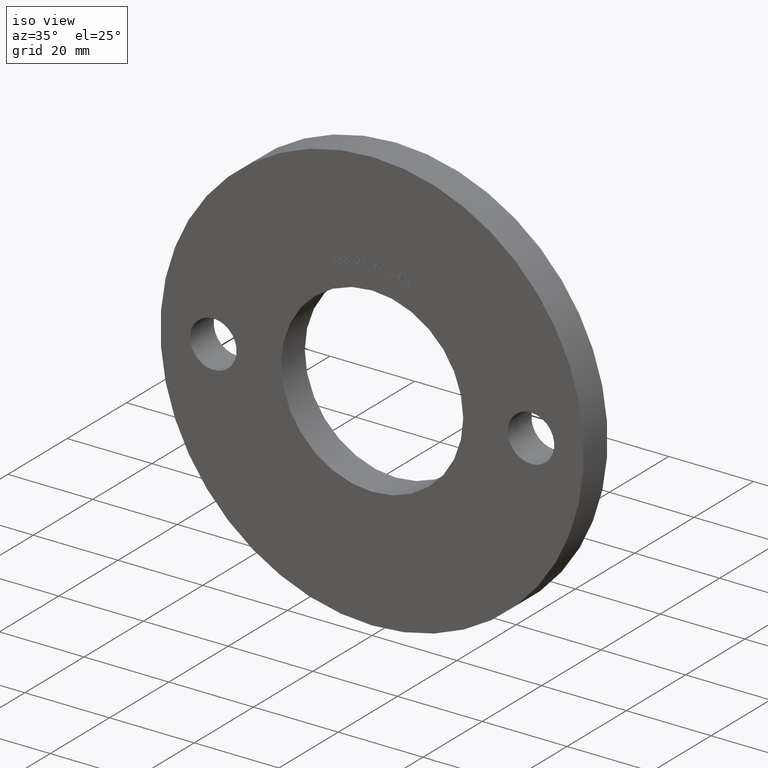
[diagram: clean part render]
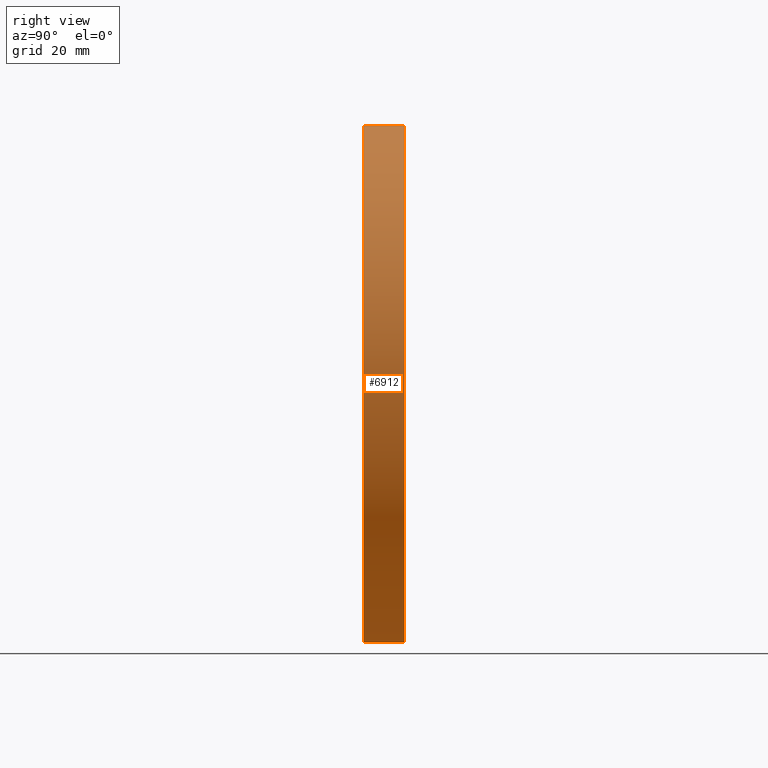
[diagram: tour spotlight — one face highlighted and labeled with its STEP entity id]
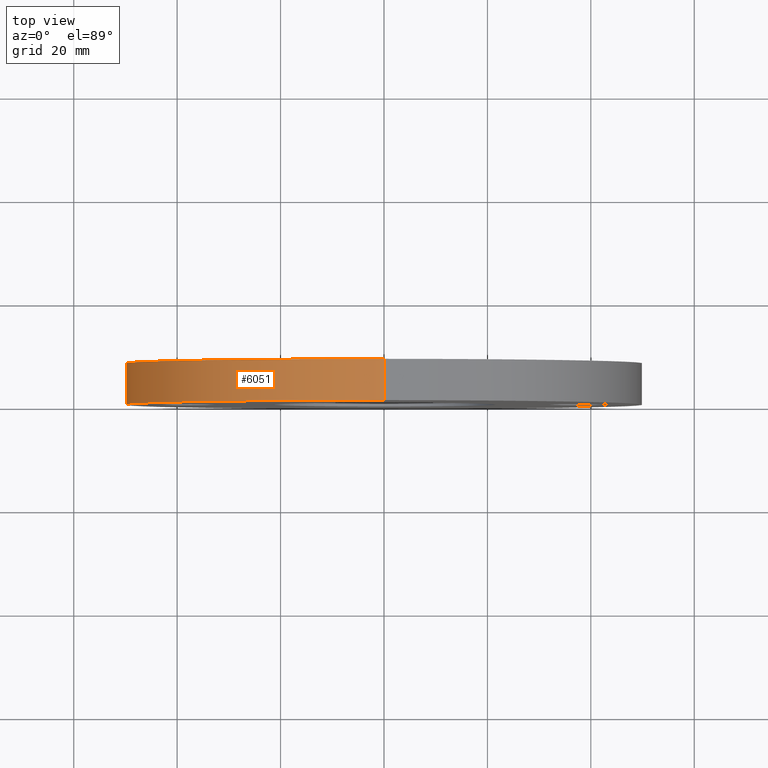
[diagram: tour spotlight — one face highlighted and labeled with its STEP entity id]
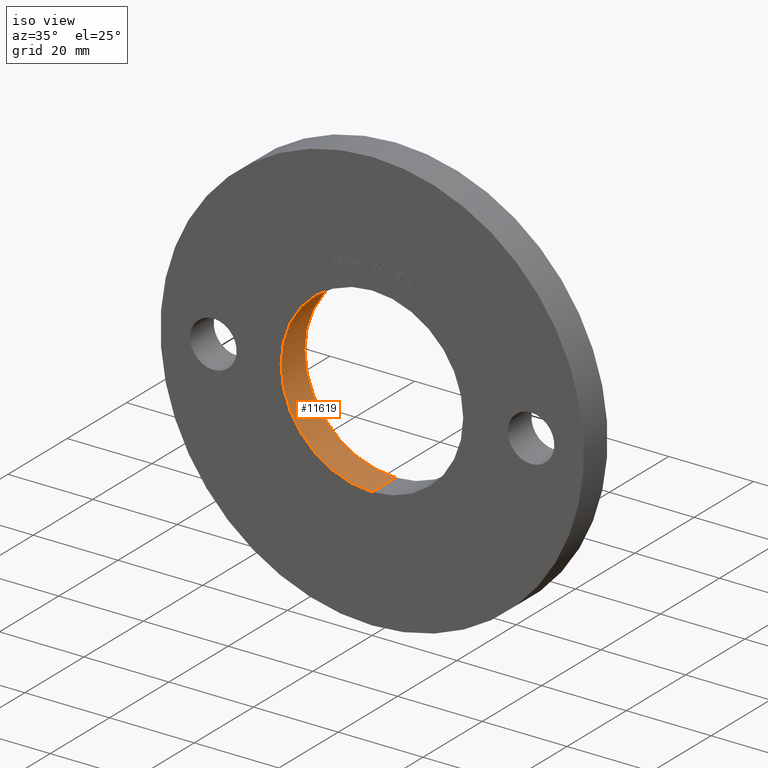
[diagram: tour spotlight — one face highlighted and labeled with its STEP entity id]
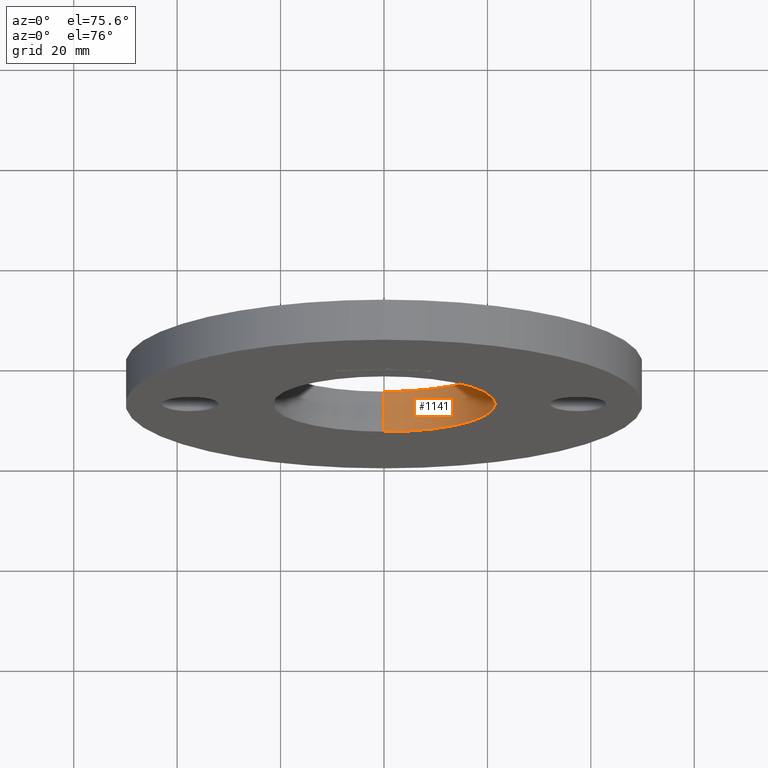
[diagram: tour spotlight — one face highlighted and labeled with its STEP entity id]
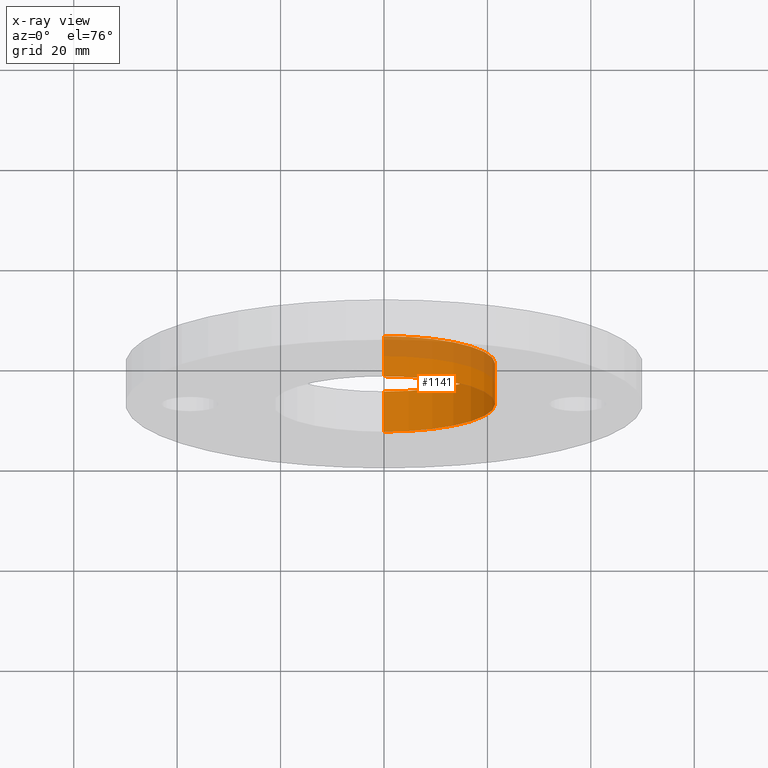
[diagram: x-ray of the same camera — body ghosted, this tour face saturated]
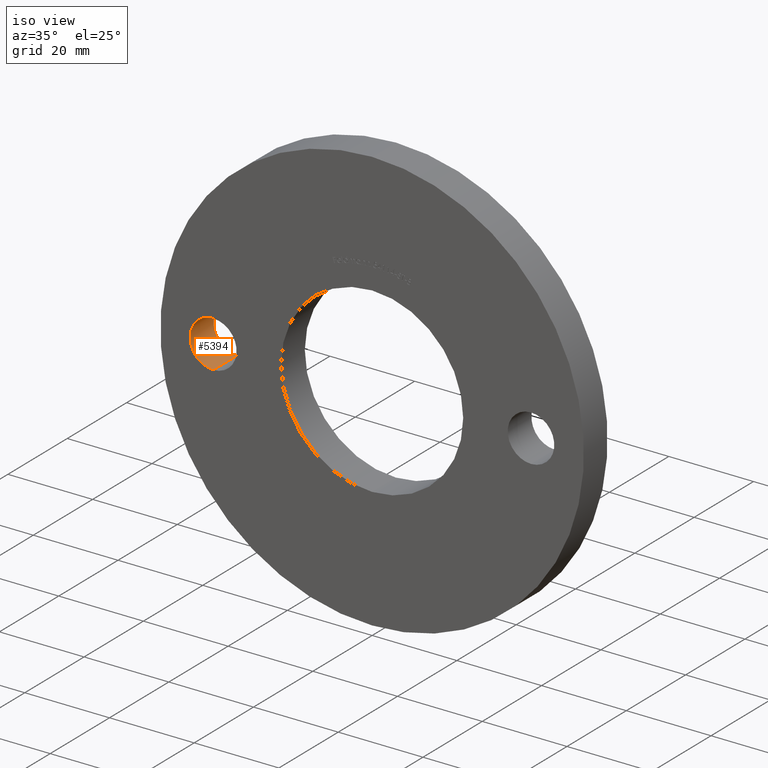
[diagram: tour spotlight — one face highlighted and labeled with its STEP entity id]
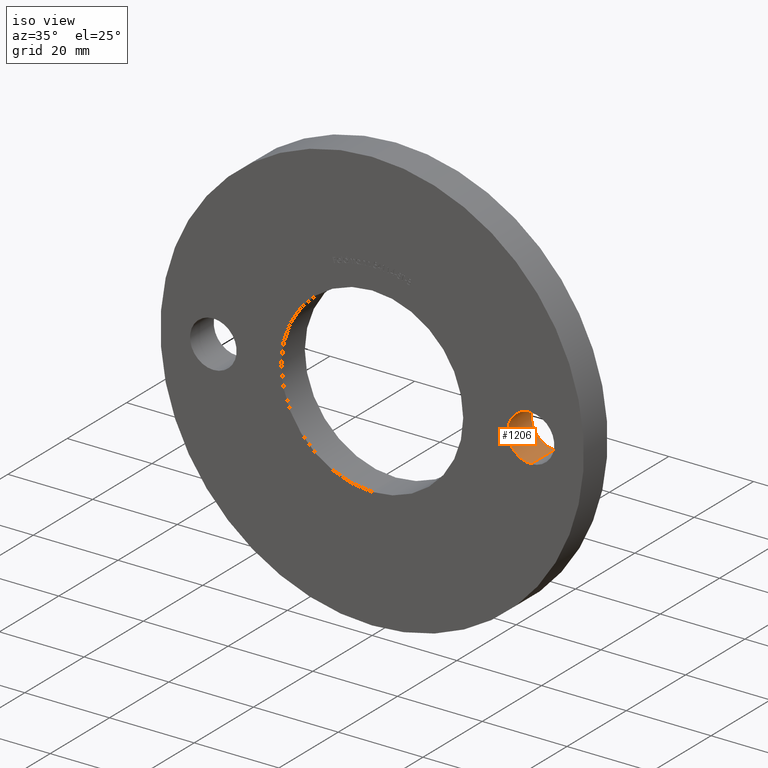
[diagram: tour spotlight — one face highlighted and labeled with its STEP entity id]
A machine part: a face-by-face anatomy tour. The part has 239 B-rep faces; the first image is the clean iso view, then the 6 largest visible faces are spotlighted one at a time (largest first), each with its STEP entity span.

Face 1 — right view, entity #6912. In plain terms, the highlighted cylindrical surface (partial cylindrical patch) has radius 50 mm, axis along (-0, -1, -0).
Definition (entity closure, byte-faithful):
#39 = AXIS2_PLACEMENT_3D ( 'NONE', #10047, #1974, #5617 ) ;
#206 = EDGE_CURVE ( 'NONE', #6939, #8905, #3088, .T. ) ;
#783 = ORIENTED_EDGE ( 'NONE', *, *, #206, .F. ) ;
#1406 = DIRECTION ( 'NONE',  ( 0.0000000000000000000, 0.0000000000000000000, 1.000000000000000000 ) ) ;
#1845 = EDGE_CURVE ( 'NONE', #3380, #6939, #11388, .T. ) ;
#1974 = DIRECTION ( 'NONE',  ( 0.0000000000000000000, 1.000000000000000000, 0.0000000000000000000 ) ) ;
#2114 = EDGE_LOOP ( 'NONE', ( #3367, #10703, #4346, #783 ) ) ;
#2808 = VECTOR ( 'NONE', #5185, 1000.000000000000000 ) ;
#2947 = CARTESIAN_POINT ( 'NONE',  ( 6.123233995736766100E-015, 8.000000000000000000, 50.00000000000000000 ) ) ;
#3088 = LINE ( 'NONE', #6164, #2808 ) ;
#3232 = CARTESIAN_POINT ( 'NONE',  ( 0.0000000000000000000, 0.0000000000000000000, 0.0000000000000000000 ) ) ;
#3296 = CARTESIAN_POINT ( 'NONE',  ( 0.0000000000000000000, 8.000000000000000000, -50.00000000000000000 ) ) ;
#3330 = CARTESIAN_POINT ( 'NONE',  ( 6.123233995736766100E-015, 0.0000000000000000000, 50.00000000000000000 ) ) ;
#3367 = ORIENTED_EDGE ( 'NONE', *, *, #1845, .F. ) ;
#3380 = VERTEX_POINT ( 'NONE', #2947 ) ;
#3402 = EDGE_CURVE ( 'NONE', #3380, #7420, #9089, .T. ) ;
#3827 = CARTESIAN_POINT ( 'NONE',  ( 6.123233995736766100E-015, 8.000000000000000000, 50.00000000000000000 ) ) ;
#4346 = ORIENTED_EDGE ( 'NONE', *, *, #4633, .T. ) ;
#4633 = EDGE_CURVE ( 'NONE', #7420, #8905, #8513, .T. ) ;
#4980 = VECTOR ( 'NONE', #6624, 1000.000000000000000 ) ;
#5185 = DIRECTION ( 'NONE',  ( -0.0000000000000000000, -1.000000000000000000, -0.0000000000000000000 ) ) ;
#5419 = AXIS2_PLACEMENT_3D ( 'NONE', #3232, #6811, #1406 ) ;
#5617 = DIRECTION ( 'NONE',  ( 0.0000000000000000000, 0.0000000000000000000, 1.000000000000000000 ) ) ;
#5867 = FACE_OUTER_BOUND ( 'NONE', #2114, .T. ) ;
#6164 = CARTESIAN_POINT ( 'NONE',  ( 0.0000000000000000000, 8.000000000000000000, -50.00000000000000000 ) ) ;
#6564 = AXIS2_PLACEMENT_3D ( 'NONE', #8869, #9619, #8825 ) ;
#6624 = DIRECTION ( 'NONE',  ( -0.0000000000000000000, -1.000000000000000000, -0.0000000000000000000 ) ) ;
#6811 = DIRECTION ( 'NONE',  ( 0.0000000000000000000, 1.000000000000000000, 0.0000000000000000000 ) ) ;
#6912 = ADVANCED_FACE ( 'NONE', ( #5867 ), #10556, .T. ) ;
#6939 = VERTEX_POINT ( 'NONE', #3296 ) ;
#7155 = CARTESIAN_POINT ( 'NONE',  ( 0.0000000000000000000, 0.0000000000000000000, -50.00000000000000000 ) ) ;
#7420 = VERTEX_POINT ( 'NONE', #3330 ) ;
#8513 = CIRCLE ( 'NONE', #5419, 50.00000000000000000 ) ;
#8825 = DIRECTION ( 'NONE',  ( 0.0000000000000000000, 0.0000000000000000000, -1.000000000000000000 ) ) ;
#8869 = CARTESIAN_POINT ( 'NONE',  ( 0.0000000000000000000, 8.000000000000000000, 0.0000000000000000000 ) ) ;
#8905 = VERTEX_POINT ( 'NONE', #7155 ) ;
#9089 = LINE ( 'NONE', #3827, #4980 ) ;
#9619 = DIRECTION ( 'NONE',  ( -0.0000000000000000000, -1.000000000000000000, -0.0000000000000000000 ) ) ;
#10047 = CARTESIAN_POINT ( 'NONE',  ( 0.0000000000000000000, 8.000000000000000000, 0.0000000000000000000 ) ) ;
#10556 = CYLINDRICAL_SURFACE ( 'NONE', #6564, 50.00000000000000000 ) ;
#10703 = ORIENTED_EDGE ( 'NONE', *, *, #3402, .T. ) ;
#11388 = CIRCLE ( 'NONE', #39, 50.00000000000000000 ) ;

Face 2 — top view, entity #6051. In plain terms, the highlighted cylindrical surface (partial cylindrical patch) has radius 50 mm, axis along (-0, -1, -0).
Definition (entity closure, byte-faithful):
#206 = EDGE_CURVE ( 'NONE', #6939, #8905, #3088, .T. ) ;
#664 = AXIS2_PLACEMENT_3D ( 'NONE', #4784, #9176, #3734 ) ;
#1016 = ORIENTED_EDGE ( 'NONE', *, *, #6034, .F. ) ;
#1341 = CARTESIAN_POINT ( 'NONE',  ( 0.0000000000000000000, 8.000000000000000000, 0.0000000000000000000 ) ) ;
#1641 = FACE_OUTER_BOUND ( 'NONE', #2949, .T. ) ;
#1717 = AXIS2_PLACEMENT_3D ( 'NONE', #7660, #2166, #3960 ) ;
#2166 = DIRECTION ( 'NONE',  ( -0.0000000000000000000, -1.000000000000000000, -0.0000000000000000000 ) ) ;
#2808 = VECTOR ( 'NONE', #5185, 1000.000000000000000 ) ;
#2947 = CARTESIAN_POINT ( 'NONE',  ( 6.123233995736766100E-015, 8.000000000000000000, 50.00000000000000000 ) ) ;
#2949 = EDGE_LOOP ( 'NONE', ( #10877, #1016, #5857, #10707 ) ) ;
#3088 = LINE ( 'NONE', #6164, #2808 ) ;
#3296 = CARTESIAN_POINT ( 'NONE',  ( 0.0000000000000000000, 8.000000000000000000, -50.00000000000000000 ) ) ;
#3330 = CARTESIAN_POINT ( 'NONE',  ( 6.123233995736766100E-015, 0.0000000000000000000, 50.00000000000000000 ) ) ;
#3380 = VERTEX_POINT ( 'NONE', #2947 ) ;
#3402 = EDGE_CURVE ( 'NONE', #3380, #7420, #9089, .T. ) ;
#3734 = DIRECTION ( 'NONE',  ( 0.0000000000000000000, 0.0000000000000000000, 1.000000000000000000 ) ) ;
#3827 = CARTESIAN_POINT ( 'NONE',  ( 6.123233995736766100E-015, 8.000000000000000000, 50.00000000000000000 ) ) ;
#3960 = DIRECTION ( 'NONE',  ( 0.0000000000000000000, 0.0000000000000000000, -1.000000000000000000 ) ) ;
#4044 = DIRECTION ( 'NONE',  ( 0.0000000000000000000, 0.0000000000000000000, 1.000000000000000000 ) ) ;
#4784 = CARTESIAN_POINT ( 'NONE',  ( 0.0000000000000000000, 0.0000000000000000000, 0.0000000000000000000 ) ) ;
#4892 = CYLINDRICAL_SURFACE ( 'NONE', #1717, 50.00000000000000000 ) ;
#4980 = VECTOR ( 'NONE', #6624, 1000.000000000000000 ) ;
#5185 = DIRECTION ( 'NONE',  ( -0.0000000000000000000, -1.000000000000000000, -0.0000000000000000000 ) ) ;
#5770 = DIRECTION ( 'NONE',  ( 0.0000000000000000000, 1.000000000000000000, 0.0000000000000000000 ) ) ;
#5857 = ORIENTED_EDGE ( 'NONE', *, *, #206, .T. ) ;
#5943 = AXIS2_PLACEMENT_3D ( 'NONE', #1341, #5770, #4044 ) ;
#5954 = EDGE_CURVE ( 'NONE', #8905, #7420, #8858, .T. ) ;
#6034 = EDGE_CURVE ( 'NONE', #6939, #3380, #8290, .T. ) ;
#6051 = ADVANCED_FACE ( 'NONE', ( #1641 ), #4892, .T. ) ;
#6164 = CARTESIAN_POINT ( 'NONE',  ( 0.0000000000000000000, 8.000000000000000000, -50.00000000000000000 ) ) ;
#6624 = DIRECTION ( 'NONE',  ( -0.0000000000000000000, -1.000000000000000000, -0.0000000000000000000 ) ) ;
#6939 = VERTEX_POINT ( 'NONE', #3296 ) ;
#7155 = CARTESIAN_POINT ( 'NONE',  ( 0.0000000000000000000, 0.0000000000000000000, -50.00000000000000000 ) ) ;
#7420 = VERTEX_POINT ( 'NONE', #3330 ) ;
#7660 = CARTESIAN_POINT ( 'NONE',  ( 0.0000000000000000000, 8.000000000000000000, 0.0000000000000000000 ) ) ;
#8290 = CIRCLE ( 'NONE', #5943, 50.00000000000000000 ) ;
#8858 = CIRCLE ( 'NONE', #664, 50.00000000000000000 ) ;
#8905 = VERTEX_POINT ( 'NONE', #7155 ) ;
#9089 = LINE ( 'NONE', #3827, #4980 ) ;
#9176 = DIRECTION ( 'NONE',  ( 0.0000000000000000000, 1.000000000000000000, 0.0000000000000000000 ) ) ;
#10707 = ORIENTED_EDGE ( 'NONE', *, *, #5954, .T. ) ;
#10877 = ORIENTED_EDGE ( 'NONE', *, *, #3402, .F. ) ;

Face 3 — iso view, entity #11619. In plain terms, the highlighted cylindrical surface (partial cylindrical patch) has radius 21.5 mm, axis along (-0, 1, -0).
Definition (entity closure, byte-faithful):
#116 = LINE ( 'NONE', #10740, #9300 ) ;
#203 = EDGE_LOOP ( 'NONE', ( #4304, #3169, #8258, #5321 ) ) ;
#449 = CARTESIAN_POINT ( 'NONE',  ( 0.0000000000000000000, 8.000000000000000000, 21.50000000000000000 ) ) ;
#703 = EDGE_CURVE ( 'NONE', #3215, #9386, #116, .T. ) ;
#804 = CARTESIAN_POINT ( 'NONE',  ( 0.0000000000000000000, 0.0000000000000000000, 21.50000000000000000 ) ) ;
#1044 = CYLINDRICAL_SURFACE ( 'NONE', #8919, 21.50000000000000000 ) ;
#2189 = CIRCLE ( 'NONE', #2708, 21.50000000000000000 ) ;
#2630 = CARTESIAN_POINT ( 'NONE',  ( 2.632990618166809200E-015, 0.0000000000000000000, -21.50000000000000000 ) ) ;
#2708 = AXIS2_PLACEMENT_3D ( 'NONE', #5692, #9414, #6721 ) ;
#2838 = CARTESIAN_POINT ( 'NONE',  ( 0.0000000000000000000, 0.0000000000000000000, 0.0000000000000000000 ) ) ;
#3047 = CARTESIAN_POINT ( 'NONE',  ( 2.632990618166809200E-015, 8.000000000000000000, -21.50000000000000000 ) ) ;
#3169 = ORIENTED_EDGE ( 'NONE', *, *, #703, .T. ) ;
#3215 = VERTEX_POINT ( 'NONE', #2630 ) ;
#4008 = AXIS2_PLACEMENT_3D ( 'NONE', #2838, #8257, #7379 ) ;
#4304 = ORIENTED_EDGE ( 'NONE', *, *, #11039, .F. ) ;
#4554 = DIRECTION ( 'NONE',  ( -0.0000000000000000000, 1.000000000000000000, -0.0000000000000000000 ) ) ;
#5228 = CARTESIAN_POINT ( 'NONE',  ( 0.0000000000000000000, 0.0000000000000000000, 0.0000000000000000000 ) ) ;
#5321 = ORIENTED_EDGE ( 'NONE', *, *, #8427, .F. ) ;
#5692 = CARTESIAN_POINT ( 'NONE',  ( 0.0000000000000000000, 8.000000000000000000, 0.0000000000000000000 ) ) ;
#6100 = CARTESIAN_POINT ( 'NONE',  ( 0.0000000000000000000, 0.0000000000000000000, 21.50000000000000000 ) ) ;
#6721 = DIRECTION ( 'NONE',  ( 0.0000000000000000000, 0.0000000000000000000, 1.000000000000000000 ) ) ;
#6998 = VERTEX_POINT ( 'NONE', #804 ) ;
#7166 = LINE ( 'NONE', #6100, #7743 ) ;
#7271 = CIRCLE ( 'NONE', #4008, 21.50000000000000000 ) ;
#7379 = DIRECTION ( 'NONE',  ( 0.0000000000000000000, 0.0000000000000000000, 1.000000000000000000 ) ) ;
#7408 = FACE_OUTER_BOUND ( 'NONE', #203, .T. ) ;
#7743 = VECTOR ( 'NONE', #8880, 1000.000000000000000 ) ;
#8257 = DIRECTION ( 'NONE',  ( 0.0000000000000000000, 1.000000000000000000, 0.0000000000000000000 ) ) ;
#8258 = ORIENTED_EDGE ( 'NONE', *, *, #10610, .T. ) ;
#8427 = EDGE_CURVE ( 'NONE', #6998, #11545, #7166, .T. ) ;
#8880 = DIRECTION ( 'NONE',  ( -0.0000000000000000000, 1.000000000000000000, -0.0000000000000000000 ) ) ;
#8919 = AXIS2_PLACEMENT_3D ( 'NONE', #5228, #11484, #10693 ) ;
#9300 = VECTOR ( 'NONE', #4554, 1000.000000000000000 ) ;
#9386 = VERTEX_POINT ( 'NONE', #3047 ) ;
#9414 = DIRECTION ( 'NONE',  ( 0.0000000000000000000, 1.000000000000000000, 0.0000000000000000000 ) ) ;
#10610 = EDGE_CURVE ( 'NONE', #9386, #11545, #2189, .T. ) ;
#10693 = DIRECTION ( 'NONE',  ( 0.0000000000000000000, 0.0000000000000000000, 1.000000000000000000 ) ) ;
#10740 = CARTESIAN_POINT ( 'NONE',  ( 2.632990618166809200E-015, 0.0000000000000000000, -21.50000000000000000 ) ) ;
#11039 = EDGE_CURVE ( 'NONE', #3215, #6998, #7271, .T. ) ;
#11484 = DIRECTION ( 'NONE',  ( -0.0000000000000000000, 1.000000000000000000, -0.0000000000000000000 ) ) ;
#11545 = VERTEX_POINT ( 'NONE', #449 ) ;
#11619 = ADVANCED_FACE ( 'NONE', ( #7408 ), #1044, .F. ) ;

Face 4 — auxiliary view, entity #1141. An x-ray twin of the same camera follows (body ghosted, this face saturated) — the face is partly hidden behind the body. In plain terms, the highlighted cylindrical surface (partial cylindrical patch) has radius 21.5 mm, axis along (-0, 1, -0).
Definition (entity closure, byte-faithful):
#116 = LINE ( 'NONE', #10740, #9300 ) ;
#449 = CARTESIAN_POINT ( 'NONE',  ( 0.0000000000000000000, 8.000000000000000000, 21.50000000000000000 ) ) ;
#646 = ORIENTED_EDGE ( 'NONE', *, *, #8427, .T. ) ;
#703 = EDGE_CURVE ( 'NONE', #3215, #9386, #116, .T. ) ;
#804 = CARTESIAN_POINT ( 'NONE',  ( 0.0000000000000000000, 0.0000000000000000000, 21.50000000000000000 ) ) ;
#1141 = ADVANCED_FACE ( 'NONE', ( #1904 ), #11253, .F. ) ;
#1535 = EDGE_CURVE ( 'NONE', #11545, #9386, #5723, .T. ) ;
#1679 = DIRECTION ( 'NONE',  ( 0.0000000000000000000, 1.000000000000000000, 0.0000000000000000000 ) ) ;
#1779 = CIRCLE ( 'NONE', #9848, 21.50000000000000000 ) ;
#1904 = FACE_OUTER_BOUND ( 'NONE', #2884, .T. ) ;
#2630 = CARTESIAN_POINT ( 'NONE',  ( 2.632990618166809200E-015, 0.0000000000000000000, -21.50000000000000000 ) ) ;
#2884 = EDGE_LOOP ( 'NONE', ( #11675, #5477, #646, #3436 ) ) ;
#3047 = CARTESIAN_POINT ( 'NONE',  ( 2.632990618166809200E-015, 8.000000000000000000, -21.50000000000000000 ) ) ;
#3215 = VERTEX_POINT ( 'NONE', #2630 ) ;
#3362 = DIRECTION ( 'NONE',  ( 0.0000000000000000000, 0.0000000000000000000, 1.000000000000000000 ) ) ;
#3436 = ORIENTED_EDGE ( 'NONE', *, *, #1535, .T. ) ;
#4554 = DIRECTION ( 'NONE',  ( -0.0000000000000000000, 1.000000000000000000, -0.0000000000000000000 ) ) ;
#4710 = CARTESIAN_POINT ( 'NONE',  ( 0.0000000000000000000, 8.000000000000000000, 0.0000000000000000000 ) ) ;
#5169 = CARTESIAN_POINT ( 'NONE',  ( 0.0000000000000000000, 0.0000000000000000000, 0.0000000000000000000 ) ) ;
#5211 = DIRECTION ( 'NONE',  ( -0.0000000000000000000, 1.000000000000000000, -0.0000000000000000000 ) ) ;
#5429 = DIRECTION ( 'NONE',  ( 0.0000000000000000000, 0.0000000000000000000, 1.000000000000000000 ) ) ;
#5477 = ORIENTED_EDGE ( 'NONE', *, *, #10311, .F. ) ;
#5541 = DIRECTION ( 'NONE',  ( 0.0000000000000000000, 0.0000000000000000000, 1.000000000000000000 ) ) ;
#5723 = CIRCLE ( 'NONE', #6898, 21.50000000000000000 ) ;
#6100 = CARTESIAN_POINT ( 'NONE',  ( 0.0000000000000000000, 0.0000000000000000000, 21.50000000000000000 ) ) ;
#6898 = AXIS2_PLACEMENT_3D ( 'NONE', #4710, #9216, #5541 ) ;
#6998 = VERTEX_POINT ( 'NONE', #804 ) ;
#7125 = AXIS2_PLACEMENT_3D ( 'NONE', #5169, #5211, #3362 ) ;
#7166 = LINE ( 'NONE', #6100, #7743 ) ;
#7743 = VECTOR ( 'NONE', #8880, 1000.000000000000000 ) ;
#8427 = EDGE_CURVE ( 'NONE', #6998, #11545, #7166, .T. ) ;
#8880 = DIRECTION ( 'NONE',  ( -0.0000000000000000000, 1.000000000000000000, -0.0000000000000000000 ) ) ;
#9216 = DIRECTION ( 'NONE',  ( 0.0000000000000000000, 1.000000000000000000, 0.0000000000000000000 ) ) ;
#9300 = VECTOR ( 'NONE', #4554, 1000.000000000000000 ) ;
#9386 = VERTEX_POINT ( 'NONE', #3047 ) ;
#9848 = AXIS2_PLACEMENT_3D ( 'NONE', #11732, #1679, #5429 ) ;
#10311 = EDGE_CURVE ( 'NONE', #6998, #3215, #1779, .T. ) ;
#10740 = CARTESIAN_POINT ( 'NONE',  ( 2.632990618166809200E-015, 0.0000000000000000000, -21.50000000000000000 ) ) ;
#11253 = CYLINDRICAL_SURFACE ( 'NONE', #7125, 21.50000000000000000 ) ;
#11545 = VERTEX_POINT ( 'NONE', #449 ) ;
#11675 = ORIENTED_EDGE ( 'NONE', *, *, #703, .F. ) ;
#11732 = CARTESIAN_POINT ( 'NONE',  ( 0.0000000000000000000, 0.0000000000000000000, 0.0000000000000000000 ) ) ;

Face 5 — iso view, entity #5394. In plain terms, the highlighted cylindrical surface (edge-blend (fillet) strip) has radius 5.5 mm, axis along (-0, 1, -0).
Definition (entity closure, byte-faithful):
#237 = CIRCLE ( 'NONE', #2626, 5.499999999999996400 ) ;
#358 = CIRCLE ( 'NONE', #10213, 5.499999999999996400 ) ;
#765 = LINE ( 'NONE', #4545, #1757 ) ;
#868 = ORIENTED_EDGE ( 'NONE', *, *, #11698, .T. ) ;
#930 = VERTEX_POINT ( 'NONE', #9735 ) ;
#1757 = VECTOR ( 'NONE', #7222, 1000.000000000000000 ) ;
#1821 = CARTESIAN_POINT ( 'NONE',  ( -37.50000000000000000, 0.0000000000000000000, -5.499999999999996400 ) ) ;
#1936 = VECTOR ( 'NONE', #5444, 1000.000000000000000 ) ;
#2626 = AXIS2_PLACEMENT_3D ( 'NONE', #8997, #8203, #10826 ) ;
#3627 = CARTESIAN_POINT ( 'NONE',  ( -37.50000000000000000, 8.000000000000000000, 5.499999999999996400 ) ) ;
#3855 = CARTESIAN_POINT ( 'NONE',  ( -37.50000000000000000, 8.000000000000000000, -5.499999999999996400 ) ) ;
#4280 = CYLINDRICAL_SURFACE ( 'NONE', #7464, 5.499999999999996400 ) ;
#4545 = CARTESIAN_POINT ( 'NONE',  ( -37.50000000000000000, 0.0000000000000000000, -5.499999999999996400 ) ) ;
#4854 = VERTEX_POINT ( 'NONE', #3627 ) ;
#5073 = DIRECTION ( 'NONE',  ( 0.0000000000000000000, 0.0000000000000000000, 1.000000000000000000 ) ) ;
#5356 = DIRECTION ( 'NONE',  ( 0.0000000000000000000, 0.0000000000000000000, 1.000000000000000000 ) ) ;
#5394 = ADVANCED_FACE ( 'NONE', ( #10644 ), #4280, .F. ) ;
#5444 = DIRECTION ( 'NONE',  ( -0.0000000000000000000, 1.000000000000000000, -0.0000000000000000000 ) ) ;
#5534 = VERTEX_POINT ( 'NONE', #1821 ) ;
#5822 = ORIENTED_EDGE ( 'NONE', *, *, #10434, .T. ) ;
#6181 = CARTESIAN_POINT ( 'NONE',  ( -37.50000000000000000, 8.000000000000000000, 0.0000000000000000000 ) ) ;
#6311 = CARTESIAN_POINT ( 'NONE',  ( -37.50000000000000000, 0.0000000000000000000, 5.499999999999996400 ) ) ;
#6595 = LINE ( 'NONE', #6311, #1936 ) ;
#6670 = VERTEX_POINT ( 'NONE', #3855 ) ;
#6980 = ORIENTED_EDGE ( 'NONE', *, *, #9049, .F. ) ;
#7222 = DIRECTION ( 'NONE',  ( -0.0000000000000000000, 1.000000000000000000, -0.0000000000000000000 ) ) ;
#7464 = AXIS2_PLACEMENT_3D ( 'NONE', #10310, #9550, #5073 ) ;
#8002 = DIRECTION ( 'NONE',  ( 0.0000000000000000000, 1.000000000000000000, 0.0000000000000000000 ) ) ;
#8203 = DIRECTION ( 'NONE',  ( 0.0000000000000000000, 1.000000000000000000, 0.0000000000000000000 ) ) ;
#8531 = EDGE_LOOP ( 'NONE', ( #11506, #868, #5822, #6980 ) ) ;
#8997 = CARTESIAN_POINT ( 'NONE',  ( -37.50000000000000000, 0.0000000000000000000, 0.0000000000000000000 ) ) ;
#9022 = EDGE_CURVE ( 'NONE', #5534, #930, #237, .T. ) ;
#9049 = EDGE_CURVE ( 'NONE', #930, #4854, #6595, .T. ) ;
#9550 = DIRECTION ( 'NONE',  ( -0.0000000000000000000, 1.000000000000000000, -0.0000000000000000000 ) ) ;
#9735 = CARTESIAN_POINT ( 'NONE',  ( -37.50000000000000000, 0.0000000000000000000, 5.499999999999996400 ) ) ;
#10213 = AXIS2_PLACEMENT_3D ( 'NONE', #6181, #8002, #5356 ) ;
#10310 = CARTESIAN_POINT ( 'NONE',  ( -37.50000000000000000, 0.0000000000000000000, 0.0000000000000000000 ) ) ;
#10434 = EDGE_CURVE ( 'NONE', #6670, #4854, #358, .T. ) ;
#10644 = FACE_OUTER_BOUND ( 'NONE', #8531, .T. ) ;
#10826 = DIRECTION ( 'NONE',  ( 0.0000000000000000000, 0.0000000000000000000, 1.000000000000000000 ) ) ;
#11506 = ORIENTED_EDGE ( 'NONE', *, *, #9022, .F. ) ;
#11698 = EDGE_CURVE ( 'NONE', #5534, #6670, #765, .T. ) ;

Face 6 — iso view, entity #1206. In plain terms, the highlighted cylindrical surface (edge-blend (fillet) strip) has radius 5.5 mm, axis along (-0, 1, -0).
Definition (entity closure, byte-faithful):
#29 = ORIENTED_EDGE ( 'NONE', *, *, #4140, .F. ) ;
#216 = FACE_OUTER_BOUND ( 'NONE', #6207, .T. ) ;
#324 = LINE ( 'NONE', #5365, #10370 ) ;
#636 = CARTESIAN_POINT ( 'NONE',  ( 37.50000000000000000, 0.0000000000000000000, 5.499999999999986700 ) ) ;
#1027 = DIRECTION ( 'NONE',  ( 0.0000000000000000000, 0.0000000000000000000, 1.000000000000000000 ) ) ;
#1206 = ADVANCED_FACE ( 'NONE', ( #216 ), #6001, .F. ) ;
#2053 = AXIS2_PLACEMENT_3D ( 'NONE', #8682, #9598, #4192 ) ;
#2722 = LINE ( 'NONE', #11428, #7244 ) ;
#3133 = EDGE_CURVE ( 'NONE', #9576, #9255, #2722, .T. ) ;
#3217 = EDGE_CURVE ( 'NONE', #8044, #5437, #324, .T. ) ;
#3591 = CIRCLE ( 'NONE', #3612, 5.499999999999996400 ) ;
#3612 = AXIS2_PLACEMENT_3D ( 'NONE', #9211, #4637, #1027 ) ;
#4140 = EDGE_CURVE ( 'NONE', #8044, #9576, #3591, .T. ) ;
#4192 = DIRECTION ( 'NONE',  ( 0.0000000000000000000, 0.0000000000000000000, 1.000000000000000000 ) ) ;
#4499 = CARTESIAN_POINT ( 'NONE',  ( 37.50000000000000000, 8.000000000000000000, -5.500000000000005300 ) ) ;
#4637 = DIRECTION ( 'NONE',  ( 0.0000000000000000000, 1.000000000000000000, 0.0000000000000000000 ) ) ;
#4917 = CARTESIAN_POINT ( 'NONE',  ( 37.50000000000000000, 8.000000000000000000, 5.499999999999986700 ) ) ;
#5082 = DIRECTION ( 'NONE',  ( -0.0000000000000000000, 1.000000000000000000, -0.0000000000000000000 ) ) ;
#5246 = DIRECTION ( 'NONE',  ( -0.0000000000000000000, 1.000000000000000000, -0.0000000000000000000 ) ) ;
#5365 = CARTESIAN_POINT ( 'NONE',  ( 37.50000000000000000, 0.0000000000000000000, -5.500000000000005300 ) ) ;
#5437 = VERTEX_POINT ( 'NONE', #4499 ) ;
#5590 = CIRCLE ( 'NONE', #10438, 5.499999999999996400 ) ;
#5615 = ORIENTED_EDGE ( 'NONE', *, *, #6886, .T. ) ;
#6001 = CYLINDRICAL_SURFACE ( 'NONE', #2053, 5.499999999999996400 ) ;
#6015 = ORIENTED_EDGE ( 'NONE', *, *, #3133, .F. ) ;
#6018 = CARTESIAN_POINT ( 'NONE',  ( 37.50000000000000000, 8.000000000000000000, -9.184850993605148700E-015 ) ) ;
#6207 = EDGE_LOOP ( 'NONE', ( #29, #9962, #5615, #6015 ) ) ;
#6886 = EDGE_CURVE ( 'NONE', #5437, #9255, #5590, .T. ) ;
#6919 = DIRECTION ( 'NONE',  ( 0.0000000000000000000, 1.000000000000000000, 0.0000000000000000000 ) ) ;
#7144 = CARTESIAN_POINT ( 'NONE',  ( 37.50000000000000000, 0.0000000000000000000, -5.500000000000005300 ) ) ;
#7244 = VECTOR ( 'NONE', #5082, 1000.000000000000000 ) ;
#8044 = VERTEX_POINT ( 'NONE', #7144 ) ;
#8682 = CARTESIAN_POINT ( 'NONE',  ( 37.50000000000000000, 0.0000000000000000000, -9.184850993605148700E-015 ) ) ;
#8746 = DIRECTION ( 'NONE',  ( 0.0000000000000000000, 0.0000000000000000000, 1.000000000000000000 ) ) ;
#9211 = CARTESIAN_POINT ( 'NONE',  ( 37.50000000000000000, 0.0000000000000000000, -9.184850993605148700E-015 ) ) ;
#9255 = VERTEX_POINT ( 'NONE', #4917 ) ;
#9576 = VERTEX_POINT ( 'NONE', #636 ) ;
#9598 = DIRECTION ( 'NONE',  ( -0.0000000000000000000, 1.000000000000000000, -0.0000000000000000000 ) ) ;
#9962 = ORIENTED_EDGE ( 'NONE', *, *, #3217, .T. ) ;
#10370 = VECTOR ( 'NONE', #5246, 1000.000000000000000 ) ;
#10438 = AXIS2_PLACEMENT_3D ( 'NONE', #6018, #6919, #8746 ) ;
#11428 = CARTESIAN_POINT ( 'NONE',  ( 37.50000000000000000, 0.0000000000000000000, 5.499999999999986700 ) ) ;